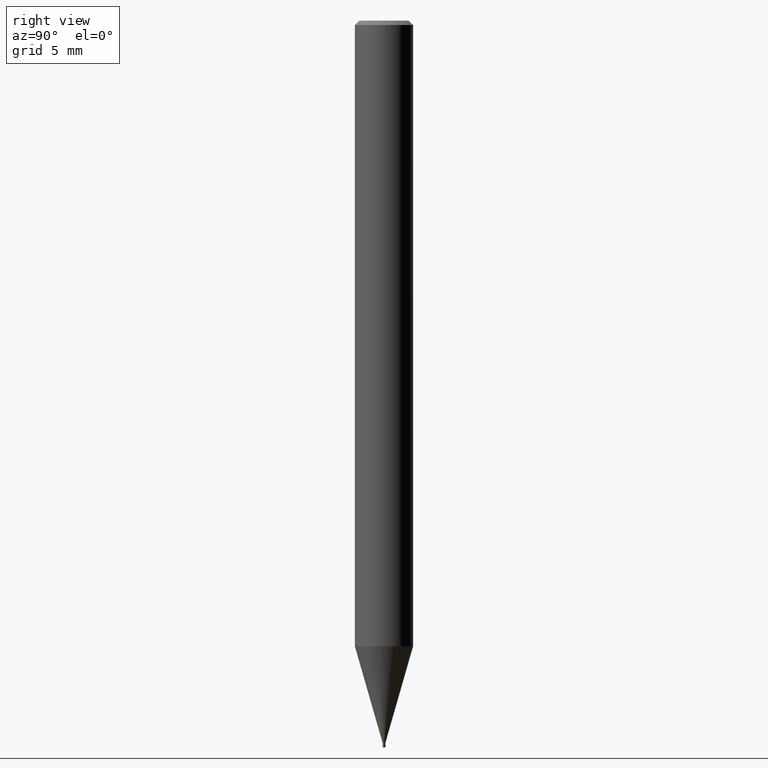
[diagram: clean part render]
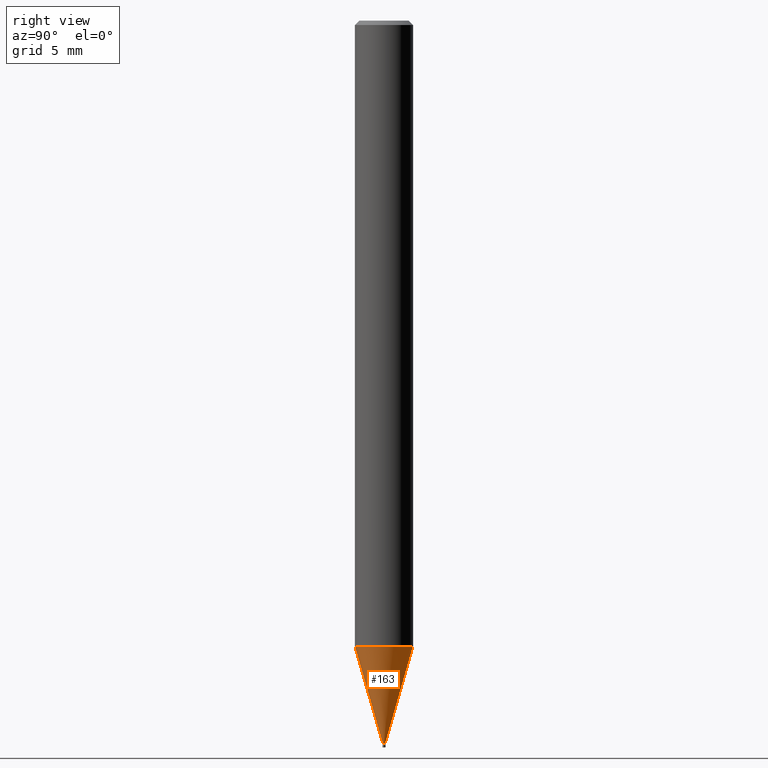
[diagram: same view with one face highlighted and labeled with its STEP entity id]
A machine part, right view. The second image highlights one B-rep face of the part: STEP entity #163.
In plain terms, the highlighted conical surface has half-angle 16.001 deg.
Its self-contained STEP definition (entity closure, byte-faithful):
#143=VERTEX_POINT('',#378);
#145=VERTEX_POINT('',#380);
#163=ADVANCED_FACE('',(#398),#399,.T.);
#191=EDGE_CURVE('',#145,#265,#428,.T.);
#199=EDGE_CURVE('',#143,#217,#437,.T.);
#217=VERTEX_POINT('',#456);
#265=VERTEX_POINT('',#508);
#301=EDGE_CURVE('',#143,#145,#553,.T.);
#329=EDGE_CURVE('',#265,#217,#591,.T.);
#378=CARTESIAN_POINT('',(0.0,1.99995,-43.038));
#380=CARTESIAN_POINT('',(0.0,0.09245,-49.69));
#398=FACE_OUTER_BOUND('',#658,.T.);
#399=CONICAL_SURFACE('',#659,1.0462,0.279262361421134);
#428=CIRCLE('',#704,0.09245);
#437=CIRCLE('',#716,1.99995);
#456=CARTESIAN_POINT('',(2.44915147732706E-016,-1.99995,-43.038));
#508=CARTESIAN_POINT('',(1.13214857410879E-017,-0.09245,-49.69));
#553=LINE('',#858,#859);
#591=LINE('',#904,#905);
#658=EDGE_LOOP('',(#950,#951,#952,#953));
#659=AXIS2_PLACEMENT_3D('',#954,#955,#956);
#704=AXIS2_PLACEMENT_3D('',#985,#986,#987);
#716=AXIS2_PLACEMENT_3D('',#1002,#1003,#1004);
#858=CARTESIAN_POINT('',(-1.28118316736897E-016,1.0462,-46.364));
#859=VECTOR('',#1159,1.0);
#904=CARTESIAN_POINT('',(1.28118316736897E-016,-1.0462,-46.364));
#905=VECTOR('',#1225,1.0);
#950=ORIENTED_EDGE('',*,*,#301,.F.);
#951=ORIENTED_EDGE('',*,*,#199,.T.);
#952=ORIENTED_EDGE('',*,*,#329,.F.);
#953=ORIENTED_EDGE('',*,*,#191,.F.);
#954=CARTESIAN_POINT('',(0.0,0.0,-46.364));
#955=DIRECTION('',(-0.0,-0.0,1.0));
#956=DIRECTION('',(0.0,1.0,0.0));
#985=CARTESIAN_POINT('',(0.0,0.0,-49.69));
#986=DIRECTION('',(0.0,0.0,-1.0));
#987=DIRECTION('',(0.0,1.0,0.0));
#1002=CARTESIAN_POINT('',(0.0,0.0,-43.038));
#1003=DIRECTION('',(0.0,0.0,-1.0));
#1004=DIRECTION('',(0.0,1.0,0.0));
#1159=DIRECTION('',(3.37558653544073E-017,-0.275646661876649,-0.961259027419904));
#1225=DIRECTION('',(3.37558653544073E-017,-0.275646661876649,0.961259027419904));